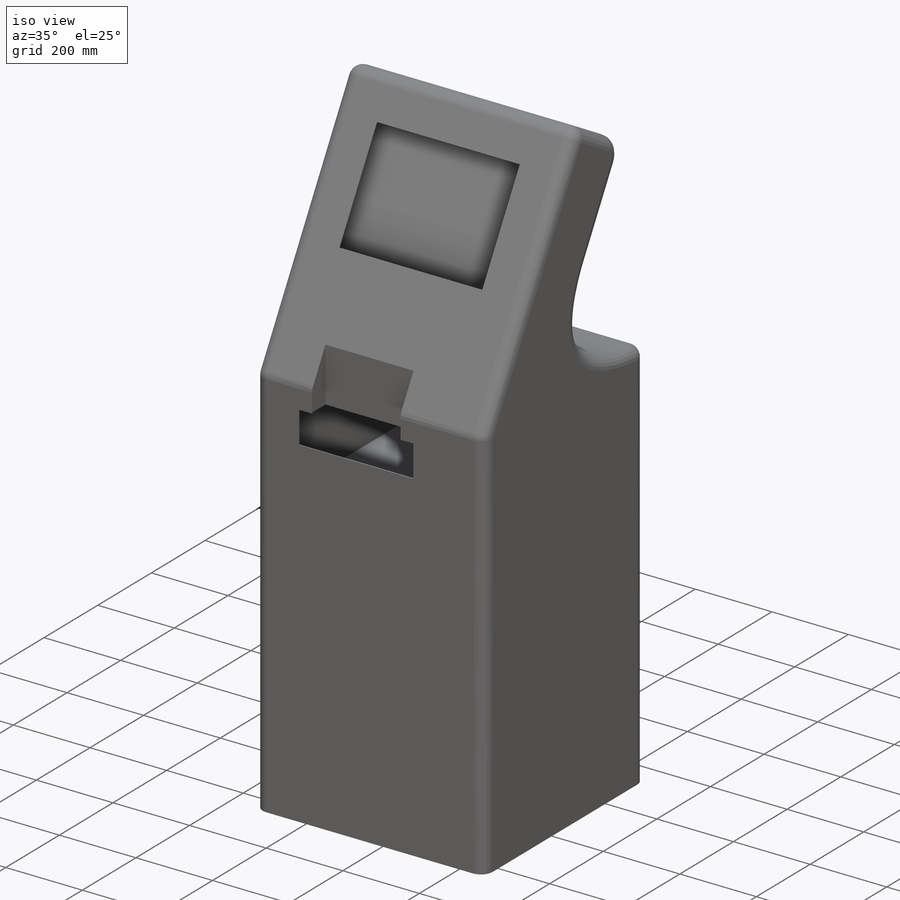
[diagram: iso view]
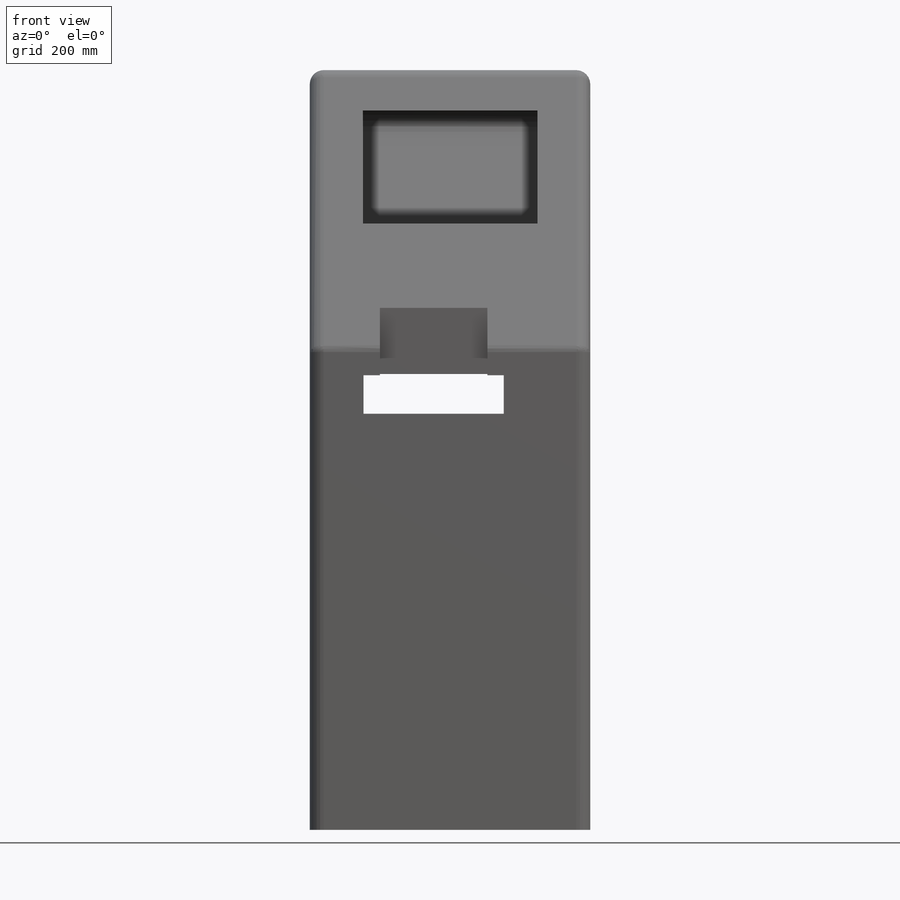
[diagram: front view]
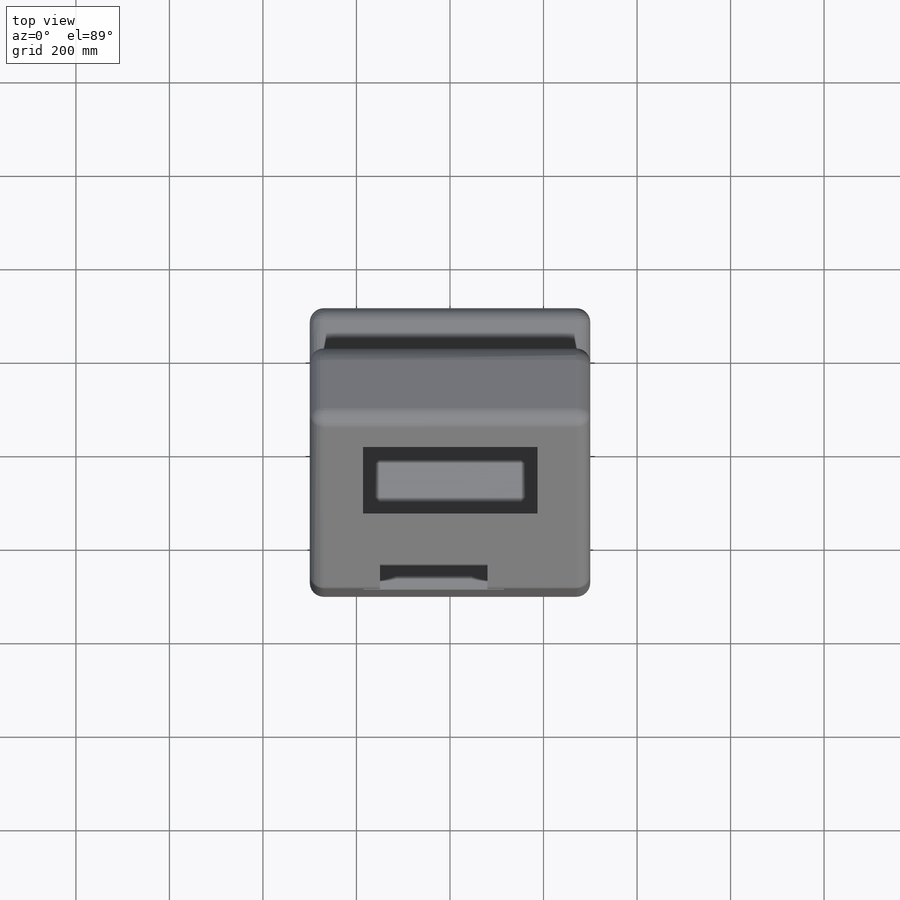
[diagram: top view]
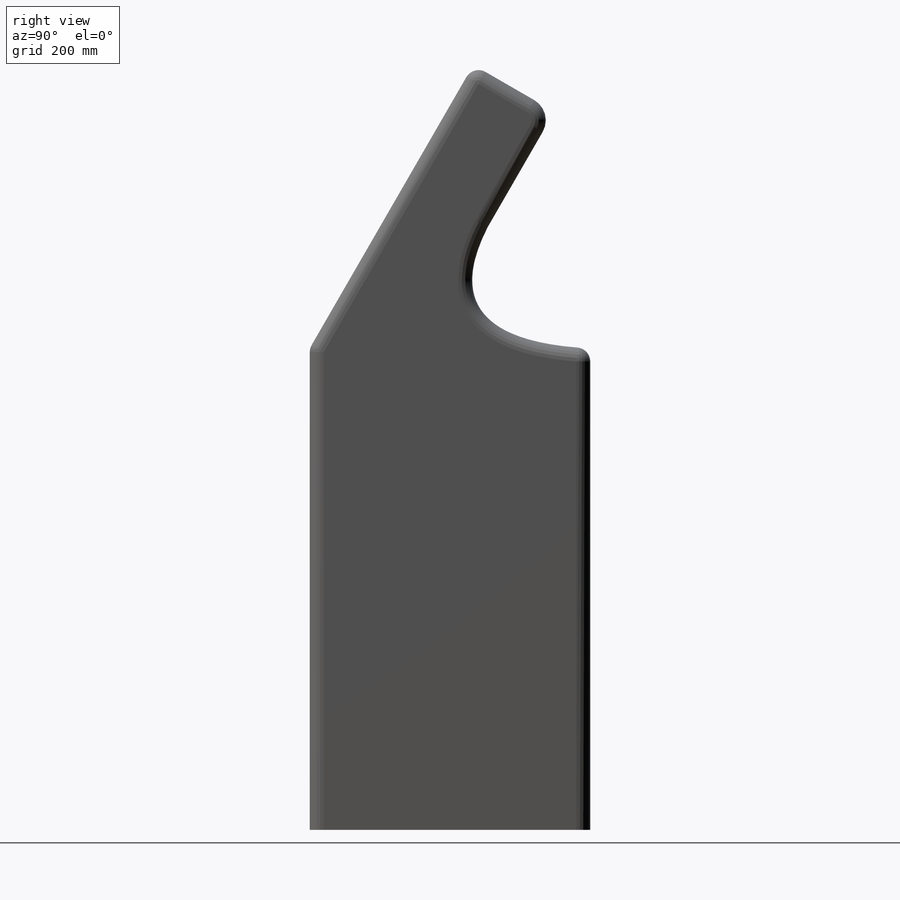
[diagram: right view]
SOLIDWORKS PART (.sldprt)
format: sldprt  version: not decoded by parser v0  size: 435,200 bytes
history: native  units: mm
features: plane x9, sketch x9, cut_extrude x5, extrude x3, pattern_linear x3, fillet x2, material x1, shell x1 (+13 scaffold rows collapsed)
feature tree (46):
  scaffold x13  (default folders/planes/origin — collapsed)
  material  "材质 <未指定>"
  plane  "前视基准面"
  plane  "上视基准面"
  plane  "右视基准面"
  sketch  "草图1"  dims[D1=600.0mm]
  extrude  "拉伸1"  Depth=1030mm
  sketch  "草图4"  dims[c1.D1=700.0mm c2.D1=60.0deg c3.D1=200.0mm]
  extrude  "拉伸2"  Depth=600mm
  fillet  "圆角1"  Radius=50mm
  fillet  "圆角2"  Radius=30mm
  plane  "主面板"  Offset=0mm
  plane  "基准面2"  Offset=1030mm
  sketch  "草图8"  dims[D1=50.0mm]
  cut_extrude  "拉伸4"  Depth=100mm
  plane  "前柜面"  Offset=0mm
  sketch  "草图10"  dims[D1=80.0mm]
  cut_extrude  "拉伸5"  Depth=220mm
  plane  "后主面"  Offset=10mm
  sketch  "草图11"
  shell  "抽壳2"  Thickness=1.5mm
  cut_extrude  "拉伸7"  Depth=80mm
  sketch  "草图17"
  extrude  "拉伸9"  Depth=1.5mm
  pattern_linear  "清洗机隔板"  Count1=2 Count2=1 Spacing1=500mm Spacing2=10mm
  pattern_linear  "抽屉隔板"  Count1=2 Count2=1 Spacing1=600mm Spacing2=10mm
  pattern_linear  "打印机隔板"  Count1=2 Count2=1 Spacing1=700mm Spacing2=10mm
  sketch  "草图18"  dims[D1=295.0mm]
  plane  "触摸屏开口面"  Offset=50mm
  sketch  "草图19"  dims[D1=280.0mm]
  cut_extrude  "触摸屏开口"  Depth=80mm
  plane  "基准面3"  Offset=0mm
  sketch  "草图25"  dims[D1=2.0mm]
  cut_extrude  "切除-拉伸6"  Depth=85mm
decode coverage: 21 of 23 modeling features carry decoded parameters
note: suppression state not decoded; provenance and decode notes live in map.json
